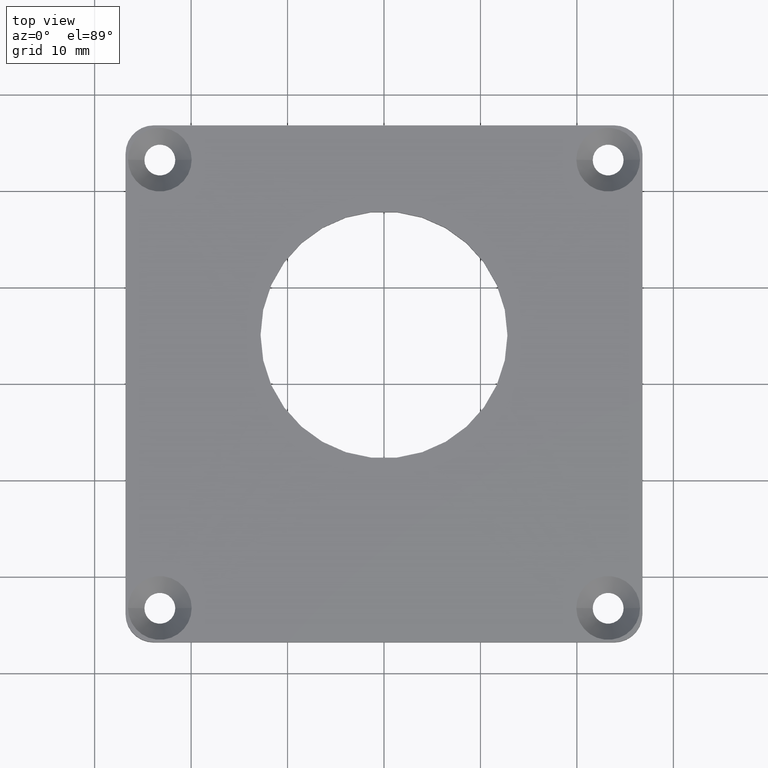
[diagram: clean part render]
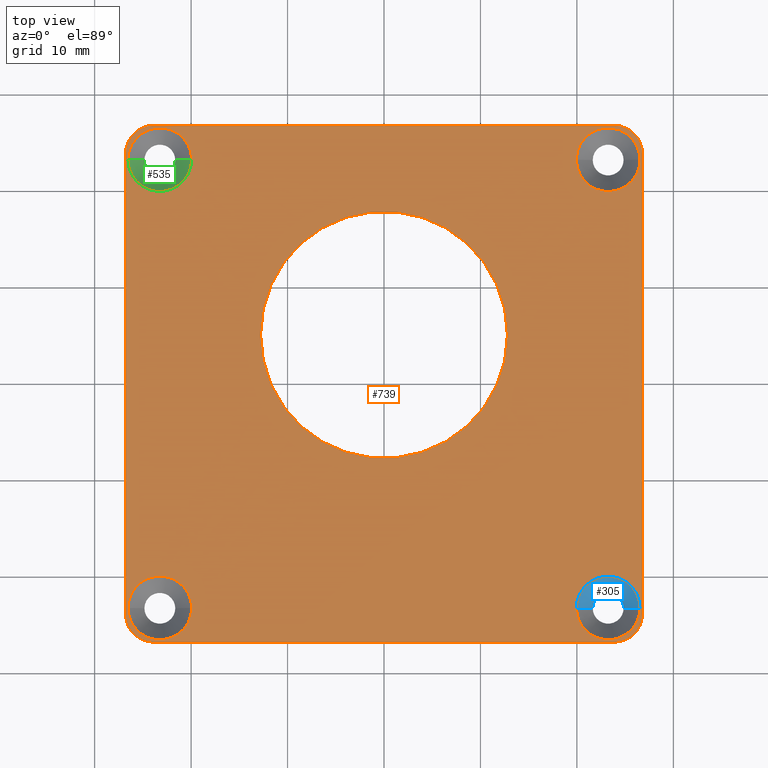
[diagram: same view with three faces highlighted in distinct colors, each labeled with its STEP entity id]
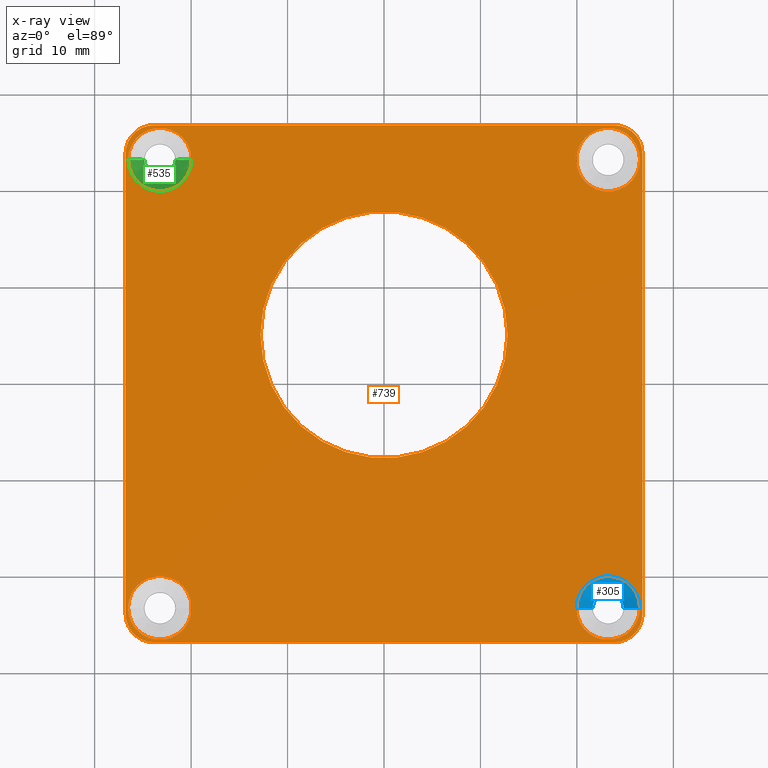
[diagram: x-ray of the same camera — body ghosted, the three highlighted faces saturated]
A machine part, top view with three faces highlighted in distinct colors.
The next image is the same camera in x-ray (body ghosted, the three faces saturated) — at least one of them is partly hidden behind the body in this view.
Their STEP definitions:

[orange] entity #739 — the highlighted planar face has unit normal (-0, 0, -1).
#6 = AXIS2_PLACEMENT_3D ( 'NONE', #835, #741, #600 ) ;
#18 = FACE_BOUND ( 'NONE', #816, .T. ) ;
#21 = VECTOR ( 'NONE', #768, 39.37007874015748100 ) ;
#27 = CARTESIAN_POINT ( 'NONE',  ( 0.9399999999999999500, 1.055000000000000200, 0.04921259842519685300 ) ) ;
#31 = ORIENTED_EDGE ( 'NONE', *, *, #477, .F. ) ;
#33 = VERTEX_POINT ( 'NONE', #512 ) ;
#36 = EDGE_CURVE ( 'NONE', #624, #533, #176, .T. ) ;
#41 = CIRCLE ( 'NONE', #642, 0.5040000000000000000 ) ;
#42 = EDGE_CURVE ( 'NONE', #787, #490, #693, .T. ) ;
#43 = CIRCLE ( 'NONE', #848, 0.1299999999999999800 ) ;
#46 = CARTESIAN_POINT ( 'NONE',  ( 0.9399999999999999500, 0.9399999999999999500, 0.04921259842519685300 ) ) ;
#47 = EDGE_CURVE ( 'NONE', #155, #241, #604, .T. ) ;
#54 = VERTEX_POINT ( 'NONE', #289 ) ;
#60 = AXIS2_PLACEMENT_3D ( 'NONE', #797, #544, #806 ) ;
#80 = DIRECTION ( 'NONE',  ( 1.000000000000000000, 0.0000000000000000000, 0.0000000000000000000 ) ) ;
#90 = CARTESIAN_POINT ( 'NONE',  ( -0.9399999999999999500, 1.055000000000000200, 0.04921259842519685300 ) ) ;
#104 = CARTESIAN_POINT ( 'NONE',  ( -0.9399999999999999500, -1.055000000000000200, 0.04921259842519685300 ) ) ;
#105 = DIRECTION ( 'NONE',  ( 1.000000000000000000, 0.0000000000000000000, 0.0000000000000000000 ) ) ;
#111 = ORIENTED_EDGE ( 'NONE', *, *, #366, .F. ) ;
#117 = VERTEX_POINT ( 'NONE', #785 ) ;
#122 = VERTEX_POINT ( 'NONE', #27 ) ;
#144 = CIRCLE ( 'NONE', #692, 0.1299999999999999800 ) ;
#147 = LINE ( 'NONE', #562, #21 ) ;
#152 = CIRCLE ( 'NONE', #412, 0.1149999999999998700 ) ;
#155 = VERTEX_POINT ( 'NONE', #206 ) ;
#158 = CARTESIAN_POINT ( 'NONE',  ( 0.9399999999999999500, -1.054999999999999700, 0.04921259842519685300 ) ) ;
#174 = DIRECTION ( 'NONE',  ( 0.0000000000000000000, 0.0000000000000000000, 1.000000000000000000 ) ) ;
#176 = CIRCLE ( 'NONE', #342, 0.1299999999999999800 ) ;
#186 = CARTESIAN_POINT ( 'NONE',  ( -1.045000000000000200, -0.9150000000000002600, 0.04921259842519685300 ) ) ;
#190 = CARTESIAN_POINT ( 'NONE',  ( -0.9399999999999999500, -1.055000000000000200, 0.04921259842519685300 ) ) ;
#197 = CIRCLE ( 'NONE', #209, 0.1299999999999999800 ) ;
#198 = CARTESIAN_POINT ( 'NONE',  ( -0.5040000000000000000, 0.2000000000000000900, 0.04921259842519685300 ) ) ;
#200 = DIRECTION ( 'NONE',  ( 1.000000000000000000, 0.0000000000000000000, 0.0000000000000000000 ) ) ;
#206 = CARTESIAN_POINT ( 'NONE',  ( -0.7850000000000002500, 0.9149999999999999200, 0.04921259842519685300 ) ) ;
#209 = AXIS2_PLACEMENT_3D ( 'NONE', #429, #526, #296 ) ;
#215 = DIRECTION ( 'NONE',  ( -0.0000000000000000000, -0.0000000000000000000, 1.000000000000000000 ) ) ;
#217 = VERTEX_POINT ( 'NONE', #422 ) ;
#223 = EDGE_CURVE ( 'NONE', #217, #122, #885, .T. ) ;
#226 = CARTESIAN_POINT ( 'NONE',  ( 0.0000000000000000000, 0.2000000000000000100, 0.04921259842519685300 ) ) ;
#229 = ORIENTED_EDGE ( 'NONE', *, *, #764, .F. ) ;
#230 = EDGE_LOOP ( 'NONE', ( #795, #519, #539, #749, #268, #423, #639, #254 ) ) ;
#231 = DIRECTION ( 'NONE',  ( -0.0000000000000000000, -0.0000000000000000000, 1.000000000000000000 ) ) ;
#241 = VERTEX_POINT ( 'NONE', #251 ) ;
#242 = CARTESIAN_POINT ( 'NONE',  ( -1.054999999999999500, 0.9399999999999999500, 0.04921259842519685300 ) ) ;
#244 = DIRECTION ( 'NONE',  ( -1.000000000000000000, 0.0000000000000000000, 0.0000000000000000000 ) ) ;
#251 = CARTESIAN_POINT ( 'NONE',  ( -1.045000000000000200, 0.9149999999999999200, 0.04921259842519685300 ) ) ;
#252 = ORIENTED_EDGE ( 'NONE', *, *, #36, .F. ) ;
#254 = ORIENTED_EDGE ( 'NONE', *, *, #274, .T. ) ;
#255 = CARTESIAN_POINT ( 'NONE',  ( -0.9150000000000002600, 0.9149999999999999200, 0.04921259842519685300 ) ) ;
#262 = EDGE_CURVE ( 'NONE', #753, #542, #197, .T. ) ;
#266 = VECTOR ( 'NONE', #678, 39.37007874015748100 ) ;
#268 = ORIENTED_EDGE ( 'NONE', *, *, #903, .T. ) ;
#270 = AXIS2_PLACEMENT_3D ( 'NONE', #255, #714, #348 ) ;
#274 = EDGE_CURVE ( 'NONE', #122, #787, #147, .T. ) ;
#275 = DIRECTION ( 'NONE',  ( 1.000000000000000000, 0.0000000000000000000, 0.0000000000000000000 ) ) ;
#277 = AXIS2_PLACEMENT_3D ( 'NONE', #433, #691, #800 ) ;
#278 = CARTESIAN_POINT ( 'NONE',  ( -0.9150000000000002600, -0.9150000000000002600, 0.04921259842519685300 ) ) ;
#280 = VERTEX_POINT ( 'NONE', #325 ) ;
#289 = CARTESIAN_POINT ( 'NONE',  ( -1.054999999999999700, -0.9399999999999999500, 0.04921259842519685300 ) ) ;
#296 = DIRECTION ( 'NONE',  ( 1.000000000000000000, 0.0000000000000000000, 0.0000000000000000000 ) ) ;
#297 = EDGE_CURVE ( 'NONE', #241, #155, #484, .T. ) ;
#306 = CARTESIAN_POINT ( 'NONE',  ( 0.7850000000000002500, -0.9150000000000002600, 0.04921259842519685300 ) ) ;
#307 = DIRECTION ( 'NONE',  ( 1.000000000000000000, 0.0000000000000000000, 0.0000000000000000000 ) ) ;
#316 = DIRECTION ( 'NONE',  ( 1.000000000000000000, 0.0000000000000000000, 0.0000000000000000000 ) ) ;
#323 = FACE_OUTER_BOUND ( 'NONE', #230, .T. ) ;
#325 = CARTESIAN_POINT ( 'NONE',  ( 0.5040000000000000000, 0.2000000000000000100, 0.04921259842519685300 ) ) ;
#328 = FACE_BOUND ( 'NONE', #873, .T. ) ;
#341 = ORIENTED_EDGE ( 'NONE', *, *, #585, .F. ) ;
#342 = AXIS2_PLACEMENT_3D ( 'NONE', #489, #781, #105 ) ;
#347 = CARTESIAN_POINT ( 'NONE',  ( 1.045000000000000200, -0.9150000000000002600, 0.04921259842519685300 ) ) ;
#348 = DIRECTION ( 'NONE',  ( 1.000000000000000000, 0.0000000000000000000, 0.0000000000000000000 ) ) ;
#350 = CARTESIAN_POINT ( 'NONE',  ( 0.7849999999999999200, 0.9149999999999999200, 0.04921259842519685300 ) ) ;
#358 = CARTESIAN_POINT ( 'NONE',  ( 0.0000000000000000000, 0.2000000000000000100, 0.04921259842519685300 ) ) ;
#366 = EDGE_CURVE ( 'NONE', #523, #33, #404, .T. ) ;
#367 = FACE_BOUND ( 'NONE', #482, .T. ) ;
#400 = PLANE ( 'NONE',  #60 ) ;
#404 = CIRCLE ( 'NONE', #6, 0.1299999999999999800 ) ;
#407 = FACE_BOUND ( 'NONE', #854, .T. ) ;
#409 = LINE ( 'NONE', #190, #552 ) ;
#412 = AXIS2_PLACEMENT_3D ( 'NONE', #743, #606, #275 ) ;
#414 = DIRECTION ( 'NONE',  ( 0.0000000000000000000, 0.0000000000000000000, 1.000000000000000000 ) ) ;
#421 = ORIENTED_EDGE ( 'NONE', *, *, #297, .F. ) ;
#422 = CARTESIAN_POINT ( 'NONE',  ( 1.054999999999999700, 0.9399999999999999500, 0.04921259842519685300 ) ) ;
#423 = ORIENTED_EDGE ( 'NONE', *, *, #784, .T. ) ;
#427 = DIRECTION ( 'NONE',  ( -1.000000000000000000, 0.0000000000000000000, 0.0000000000000000000 ) ) ;
#429 = CARTESIAN_POINT ( 'NONE',  ( 0.9149999999999999200, 0.9149999999999999200, 0.04921259842519685300 ) ) ;
#433 = CARTESIAN_POINT ( 'NONE',  ( 0.9149999999999999200, 0.9149999999999999200, 0.04921259842519685300 ) ) ;
#435 = DIRECTION ( 'NONE',  ( 0.0000000000000000000, 0.0000000000000000000, 1.000000000000000000 ) ) ;
#445 = CARTESIAN_POINT ( 'NONE',  ( -1.054999999999999500, 0.9399999999999999500, 0.04921259842519685300 ) ) ;
#455 = AXIS2_PLACEMENT_3D ( 'NONE', #358, #870, #837 ) ;
#465 = AXIS2_PLACEMENT_3D ( 'NONE', #832, #231, #733 ) ;
#477 = EDGE_CURVE ( 'NONE', #542, #753, #845, .T. ) ;
#482 = EDGE_LOOP ( 'NONE', ( #252, #341 ) ) ;
#484 = CIRCLE ( 'NONE', #270, 0.1299999999999999800 ) ;
#486 = CARTESIAN_POINT ( 'NONE',  ( -0.9399999999999999500, 0.9399999999999999500, 0.04921259842519685300 ) ) ;
#489 = CARTESIAN_POINT ( 'NONE',  ( 0.9150000000000002600, -0.9150000000000002600, 0.04921259842519685300 ) ) ;
#490 = VERTEX_POINT ( 'NONE', #445 ) ;
#512 = CARTESIAN_POINT ( 'NONE',  ( -0.7850000000000002500, -0.9150000000000002600, 0.04921259842519685300 ) ) ;
#519 = ORIENTED_EDGE ( 'NONE', *, *, #686, .T. ) ;
#523 = VERTEX_POINT ( 'NONE', #186 ) ;
#526 = DIRECTION ( 'NONE',  ( -0.0000000000000000000, -0.0000000000000000000, 1.000000000000000000 ) ) ;
#528 = AXIS2_PLACEMENT_3D ( 'NONE', #712, #435, #316 ) ;
#533 = VERTEX_POINT ( 'NONE', #306 ) ;
#539 = ORIENTED_EDGE ( 'NONE', *, *, #920, .T. ) ;
#542 = VERTEX_POINT ( 'NONE', #713 ) ;
#544 = DIRECTION ( 'NONE',  ( -0.0000000000000000000, 0.0000000000000000000, -1.000000000000000000 ) ) ;
#545 = AXIS2_PLACEMENT_3D ( 'NONE', #46, #174, #244 ) ;
#552 = VECTOR ( 'NONE', #888, 39.37007874015748100 ) ;
#554 = CIRCLE ( 'NONE', #455, 0.5040000000000000000 ) ;
#562 = CARTESIAN_POINT ( 'NONE',  ( -0.9399999999999999500, 1.055000000000000200, 0.04921259842519685300 ) ) ;
#569 = EDGE_CURVE ( 'NONE', #721, #280, #41, .T. ) ;
#573 = DIRECTION ( 'NONE',  ( -0.0000000000000000000, -0.0000000000000000000, 1.000000000000000000 ) ) ;
#585 = EDGE_CURVE ( 'NONE', #533, #624, #43, .T. ) ;
#590 = AXIS2_PLACEMENT_3D ( 'NONE', #486, #414, #427 ) ;
#600 = DIRECTION ( 'NONE',  ( 1.000000000000000000, 0.0000000000000000000, 0.0000000000000000000 ) ) ;
#604 = CIRCLE ( 'NONE', #465, 0.1299999999999999800 ) ;
#606 = DIRECTION ( 'NONE',  ( 0.0000000000000000000, 0.0000000000000000000, 1.000000000000000000 ) ) ;
#622 = VERTEX_POINT ( 'NONE', #158 ) ;
#623 = ORIENTED_EDGE ( 'NONE', *, *, #569, .F. ) ;
#624 = VERTEX_POINT ( 'NONE', #347 ) ;
#639 = ORIENTED_EDGE ( 'NONE', *, *, #223, .T. ) ;
#640 = CIRCLE ( 'NONE', #528, 0.1149999999999998700 ) ;
#642 = AXIS2_PLACEMENT_3D ( 'NONE', #226, #798, #80 ) ;
#649 = FACE_BOUND ( 'NONE', #815, .T. ) ;
#656 = CARTESIAN_POINT ( 'NONE',  ( 1.054999999999999500, 0.9399999999999999500, 0.04921259842519685300 ) ) ;
#677 = VECTOR ( 'NONE', #758, 39.37007874015748100 ) ;
#678 = DIRECTION ( 'NONE',  ( -0.0000000000000000000, 1.000000000000000000, -0.0000000000000000000 ) ) ;
#686 = EDGE_CURVE ( 'NONE', #490, #54, #723, .T. ) ;
#689 = ORIENTED_EDGE ( 'NONE', *, *, #47, .F. ) ;
#691 = DIRECTION ( 'NONE',  ( -0.0000000000000000000, -0.0000000000000000000, 1.000000000000000000 ) ) ;
#692 = AXIS2_PLACEMENT_3D ( 'NONE', #278, #215, #200 ) ;
#693 = CIRCLE ( 'NONE', #590, 0.1149999999999998700 ) ;
#712 = CARTESIAN_POINT ( 'NONE',  ( 0.9399999999999999500, -0.9399999999999999500, 0.04921259842519685300 ) ) ;
#713 = CARTESIAN_POINT ( 'NONE',  ( 1.044999999999999900, 0.9149999999999999200, 0.04921259842519685300 ) ) ;
#714 = DIRECTION ( 'NONE',  ( -0.0000000000000000000, -0.0000000000000000000, 1.000000000000000000 ) ) ;
#721 = VERTEX_POINT ( 'NONE', #198 ) ;
#723 = LINE ( 'NONE', #242, #677 ) ;
#733 = DIRECTION ( 'NONE',  ( 1.000000000000000000, 0.0000000000000000000, 0.0000000000000000000 ) ) ;
#739 = ADVANCED_FACE ( 'NONE', ( #649, #407, #367, #18, #328, #323 ), #400, .F. ) ;
#741 = DIRECTION ( 'NONE',  ( -0.0000000000000000000, -0.0000000000000000000, 1.000000000000000000 ) ) ;
#743 = CARTESIAN_POINT ( 'NONE',  ( -0.9399999999999999500, -0.9399999999999999500, 0.04921259842519685300 ) ) ;
#749 = ORIENTED_EDGE ( 'NONE', *, *, #847, .T. ) ;
#753 = VERTEX_POINT ( 'NONE', #350 ) ;
#758 = DIRECTION ( 'NONE',  ( 0.0000000000000000000, -1.000000000000000000, 0.0000000000000000000 ) ) ;
#764 = EDGE_CURVE ( 'NONE', #33, #523, #144, .T. ) ;
#768 = DIRECTION ( 'NONE',  ( -1.000000000000000000, -0.0000000000000000000, -0.0000000000000000000 ) ) ;
#778 = LINE ( 'NONE', #656, #266 ) ;
#781 = DIRECTION ( 'NONE',  ( -0.0000000000000000000, -0.0000000000000000000, 1.000000000000000000 ) ) ;
#784 = EDGE_CURVE ( 'NONE', #117, #217, #778, .T. ) ;
#785 = CARTESIAN_POINT ( 'NONE',  ( 1.054999999999999500, -0.9399999999999999500, 0.04921259842519685300 ) ) ;
#787 = VERTEX_POINT ( 'NONE', #90 ) ;
#795 = ORIENTED_EDGE ( 'NONE', *, *, #42, .T. ) ;
#797 = CARTESIAN_POINT ( 'NONE',  ( -0.9399999999999999500, 0.9399999999999999500, 0.04921259842519685300 ) ) ;
#798 = DIRECTION ( 'NONE',  ( 0.0000000000000000000, 0.0000000000000000000, 1.000000000000000000 ) ) ;
#800 = DIRECTION ( 'NONE',  ( 1.000000000000000000, 0.0000000000000000000, 0.0000000000000000000 ) ) ;
#804 = ORIENTED_EDGE ( 'NONE', *, *, #262, .F. ) ;
#806 = DIRECTION ( 'NONE',  ( -1.000000000000000000, 0.0000000000000000000, 0.0000000000000000000 ) ) ;
#815 = EDGE_LOOP ( 'NONE', ( #831, #623 ) ) ;
#816 = EDGE_LOOP ( 'NONE', ( #31, #804 ) ) ;
#831 = ORIENTED_EDGE ( 'NONE', *, *, #867, .F. ) ;
#832 = CARTESIAN_POINT ( 'NONE',  ( -0.9150000000000002600, 0.9149999999999999200, 0.04921259842519685300 ) ) ;
#835 = CARTESIAN_POINT ( 'NONE',  ( -0.9150000000000002600, -0.9150000000000002600, 0.04921259842519685300 ) ) ;
#837 = DIRECTION ( 'NONE',  ( 1.000000000000000000, 0.0000000000000000000, 0.0000000000000000000 ) ) ;
#845 = CIRCLE ( 'NONE', #277, 0.1299999999999999800 ) ;
#847 = EDGE_CURVE ( 'NONE', #904, #622, #409, .T. ) ;
#848 = AXIS2_PLACEMENT_3D ( 'NONE', #877, #573, #307 ) ;
#854 = EDGE_LOOP ( 'NONE', ( #689, #421 ) ) ;
#867 = EDGE_CURVE ( 'NONE', #280, #721, #554, .T. ) ;
#870 = DIRECTION ( 'NONE',  ( 0.0000000000000000000, 0.0000000000000000000, 1.000000000000000000 ) ) ;
#873 = EDGE_LOOP ( 'NONE', ( #229, #111 ) ) ;
#877 = CARTESIAN_POINT ( 'NONE',  ( 0.9150000000000002600, -0.9150000000000002600, 0.04921259842519685300 ) ) ;
#885 = CIRCLE ( 'NONE', #545, 0.1149999999999998700 ) ;
#888 = DIRECTION ( 'NONE',  ( 1.000000000000000000, 0.0000000000000000000, 0.0000000000000000000 ) ) ;
#903 = EDGE_CURVE ( 'NONE', #622, #117, #640, .T. ) ;
#904 = VERTEX_POINT ( 'NONE', #104 ) ;
#920 = EDGE_CURVE ( 'NONE', #54, #904, #152, .T. ) ;

[blue] entity #305 — the highlighted conical surface has half-angle 41 deg.
#14 = DIRECTION ( 'NONE',  ( 0.6560590289905072800, 0.0000000000000000000, 0.7547095802227720100 ) ) ;
#36 = EDGE_CURVE ( 'NONE', #624, #533, #176, .T. ) ;
#51 = CARTESIAN_POINT ( 'NONE',  ( 0.8520000000000002000, -0.9150000000000002600, -0.02786208485861078900 ) ) ;
#105 = DIRECTION ( 'NONE',  ( 1.000000000000000000, 0.0000000000000000000, 0.0000000000000000000 ) ) ;
#149 = DIRECTION ( 'NONE',  ( -0.6560590289905072800, 8.034405899049453800E-017, 0.7547095802227720100 ) ) ;
#154 = ORIENTED_EDGE ( 'NONE', *, *, #353, .F. ) ;
#176 = CIRCLE ( 'NONE', #342, 0.1299999999999999800 ) ;
#187 = CIRCLE ( 'NONE', #905, 0.06299999999999998700 ) ;
#195 = VECTOR ( 'NONE', #14, 39.37007874015748100 ) ;
#271 = EDGE_LOOP ( 'NONE', ( #154, #354, #336, #300 ) ) ;
#273 = VERTEX_POINT ( 'NONE', #481 ) ;
#290 = FACE_OUTER_BOUND ( 'NONE', #271, .T. ) ;
#300 = ORIENTED_EDGE ( 'NONE', *, *, #36, .T. ) ;
#305 = ADVANCED_FACE ( 'NONE', ( #290 ), #566, .F. ) ;
#306 = CARTESIAN_POINT ( 'NONE',  ( 0.7850000000000002500, -0.9150000000000002600, 0.04921259842519685300 ) ) ;
#326 = LINE ( 'NONE', #511, #524 ) ;
#336 = ORIENTED_EDGE ( 'NONE', *, *, #345, .T. ) ;
#342 = AXIS2_PLACEMENT_3D ( 'NONE', #489, #781, #105 ) ;
#345 = EDGE_CURVE ( 'NONE', #273, #624, #666, .T. ) ;
#347 = CARTESIAN_POINT ( 'NONE',  ( 1.045000000000000200, -0.9150000000000002600, 0.04921259842519685300 ) ) ;
#353 = EDGE_CURVE ( 'NONE', #882, #533, #326, .T. ) ;
#354 = ORIENTED_EDGE ( 'NONE', *, *, #570, .F. ) ;
#395 = DIRECTION ( 'NONE',  ( -0.0000000000000000000, -0.0000000000000000000, 1.000000000000000000 ) ) ;
#397 = DIRECTION ( 'NONE',  ( 1.000000000000000000, 0.0000000000000000000, 0.0000000000000000000 ) ) ;
#460 = CARTESIAN_POINT ( 'NONE',  ( 0.9150000000000002600, -0.9150000000000002600, -0.02786208485861078900 ) ) ;
#481 = CARTESIAN_POINT ( 'NONE',  ( 0.9780000000000002000, -0.9150000000000002600, -0.02786208485861078900 ) ) ;
#489 = CARTESIAN_POINT ( 'NONE',  ( 0.9150000000000002600, -0.9150000000000002600, 0.04921259842519685300 ) ) ;
#511 = CARTESIAN_POINT ( 'NONE',  ( 0.7850000000000002500, -0.9150000000000002600, 0.04921259842519685300 ) ) ;
#524 = VECTOR ( 'NONE', #149, 39.37007874015748100 ) ;
#533 = VERTEX_POINT ( 'NONE', #306 ) ;
#536 = AXIS2_PLACEMENT_3D ( 'NONE', #701, #621, #915 ) ;
#566 = CONICAL_SURFACE ( 'NONE', #536, 0.1299999999999999800, 0.7155849933176751100 ) ;
#570 = EDGE_CURVE ( 'NONE', #273, #882, #187, .T. ) ;
#621 = DIRECTION ( 'NONE',  ( -0.0000000000000000000, -0.0000000000000000000, 1.000000000000000000 ) ) ;
#624 = VERTEX_POINT ( 'NONE', #347 ) ;
#666 = LINE ( 'NONE', #809, #195 ) ;
#701 = CARTESIAN_POINT ( 'NONE',  ( 0.9150000000000002600, -0.9150000000000002600, 0.04921259842519685300 ) ) ;
#781 = DIRECTION ( 'NONE',  ( -0.0000000000000000000, -0.0000000000000000000, 1.000000000000000000 ) ) ;
#809 = CARTESIAN_POINT ( 'NONE',  ( 1.045000000000000200, -0.9150000000000002600, 0.04921259842519685300 ) ) ;
#882 = VERTEX_POINT ( 'NONE', #51 ) ;
#905 = AXIS2_PLACEMENT_3D ( 'NONE', #460, #395, #397 ) ;
#915 = DIRECTION ( 'NONE',  ( 1.000000000000000000, 0.0000000000000000000, 0.0000000000000000000 ) ) ;

[green] entity #535 — the highlighted conical surface has half-angle 41 deg.
#62 = ORIENTED_EDGE ( 'NONE', *, *, #297, .T. ) ;
#142 = ORIENTED_EDGE ( 'NONE', *, *, #256, .T. ) ;
#155 = VERTEX_POINT ( 'NONE', #206 ) ;
#205 = ORIENTED_EDGE ( 'NONE', *, *, #387, .F. ) ;
#206 = CARTESIAN_POINT ( 'NONE',  ( -0.7850000000000002500, 0.9149999999999999200, 0.04921259842519685300 ) ) ;
#220 = CARTESIAN_POINT ( 'NONE',  ( -0.9780000000000002000, 0.9149999999999999200, -0.02786208485861078900 ) ) ;
#239 = LINE ( 'NONE', #643, #538 ) ;
#241 = VERTEX_POINT ( 'NONE', #251 ) ;
#251 = CARTESIAN_POINT ( 'NONE',  ( -1.045000000000000200, 0.9149999999999999200, 0.04921259842519685300 ) ) ;
#255 = CARTESIAN_POINT ( 'NONE',  ( -0.9150000000000002600, 0.9149999999999999200, 0.04921259842519685300 ) ) ;
#256 = EDGE_CURVE ( 'NONE', #463, #241, #805, .T. ) ;
#270 = AXIS2_PLACEMENT_3D ( 'NONE', #255, #714, #348 ) ;
#297 = EDGE_CURVE ( 'NONE', #241, #155, #484, .T. ) ;
#299 = DIRECTION ( 'NONE',  ( -0.6560590289905072800, 8.034405899049453800E-017, 0.7547095802227720100 ) ) ;
#348 = DIRECTION ( 'NONE',  ( 1.000000000000000000, 0.0000000000000000000, 0.0000000000000000000 ) ) ;
#351 = CARTESIAN_POINT ( 'NONE',  ( -0.9150000000000002600, 0.9149999999999999200, 0.04921259842519685300 ) ) ;
#373 = EDGE_LOOP ( 'NONE', ( #205, #142, #62, #702 ) ) ;
#376 = CARTESIAN_POINT ( 'NONE',  ( -1.045000000000000200, 0.9149999999999999200, 0.04921259842519685300 ) ) ;
#378 = CONICAL_SURFACE ( 'NONE', #675, 0.1299999999999999800, 0.7155849933176751100 ) ;
#387 = EDGE_CURVE ( 'NONE', #463, #440, #495, .T. ) ;
#410 = FACE_OUTER_BOUND ( 'NONE', #373, .T. ) ;
#419 = DIRECTION ( 'NONE',  ( -0.0000000000000000000, -0.0000000000000000000, 1.000000000000000000 ) ) ;
#434 = CARTESIAN_POINT ( 'NONE',  ( -0.9150000000000002600, 0.9149999999999999200, -0.02786208485861078900 ) ) ;
#440 = VERTEX_POINT ( 'NONE', #716 ) ;
#463 = VERTEX_POINT ( 'NONE', #220 ) ;
#484 = CIRCLE ( 'NONE', #270, 0.1299999999999999800 ) ;
#495 = CIRCLE ( 'NONE', #696, 0.06299999999999998700 ) ;
#535 = ADVANCED_FACE ( 'NONE', ( #410 ), #378, .F. ) ;
#538 = VECTOR ( 'NONE', #725, 39.37007874015748100 ) ;
#588 = DIRECTION ( 'NONE',  ( -0.0000000000000000000, -0.0000000000000000000, 1.000000000000000000 ) ) ;
#608 = DIRECTION ( 'NONE',  ( 1.000000000000000000, 0.0000000000000000000, 0.0000000000000000000 ) ) ;
#643 = CARTESIAN_POINT ( 'NONE',  ( -0.7850000000000002500, 0.9149999999999999200, 0.04921259842519685300 ) ) ;
#655 = DIRECTION ( 'NONE',  ( 1.000000000000000000, 0.0000000000000000000, 0.0000000000000000000 ) ) ;
#675 = AXIS2_PLACEMENT_3D ( 'NONE', #351, #419, #608 ) ;
#682 = VECTOR ( 'NONE', #299, 39.37007874015748100 ) ;
#696 = AXIS2_PLACEMENT_3D ( 'NONE', #434, #588, #655 ) ;
#702 = ORIENTED_EDGE ( 'NONE', *, *, #894, .F. ) ;
#714 = DIRECTION ( 'NONE',  ( -0.0000000000000000000, -0.0000000000000000000, 1.000000000000000000 ) ) ;
#716 = CARTESIAN_POINT ( 'NONE',  ( -0.8520000000000002000, 0.9149999999999999200, -0.02786208485861078900 ) ) ;
#725 = DIRECTION ( 'NONE',  ( 0.6560590289905072800, 0.0000000000000000000, 0.7547095802227720100 ) ) ;
#805 = LINE ( 'NONE', #376, #682 ) ;
#894 = EDGE_CURVE ( 'NONE', #440, #155, #239, .T. ) ;